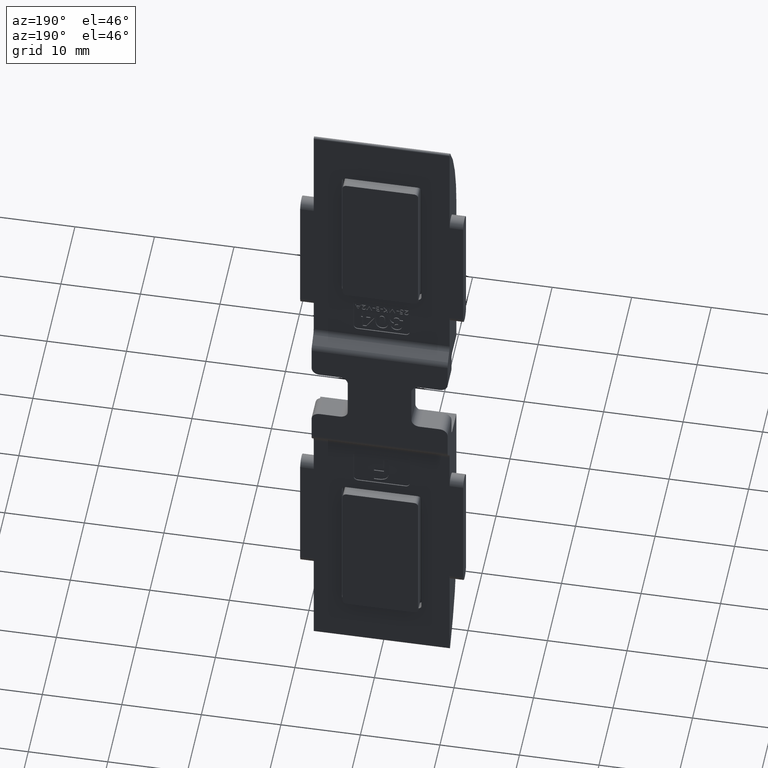
[diagram: clean part render]
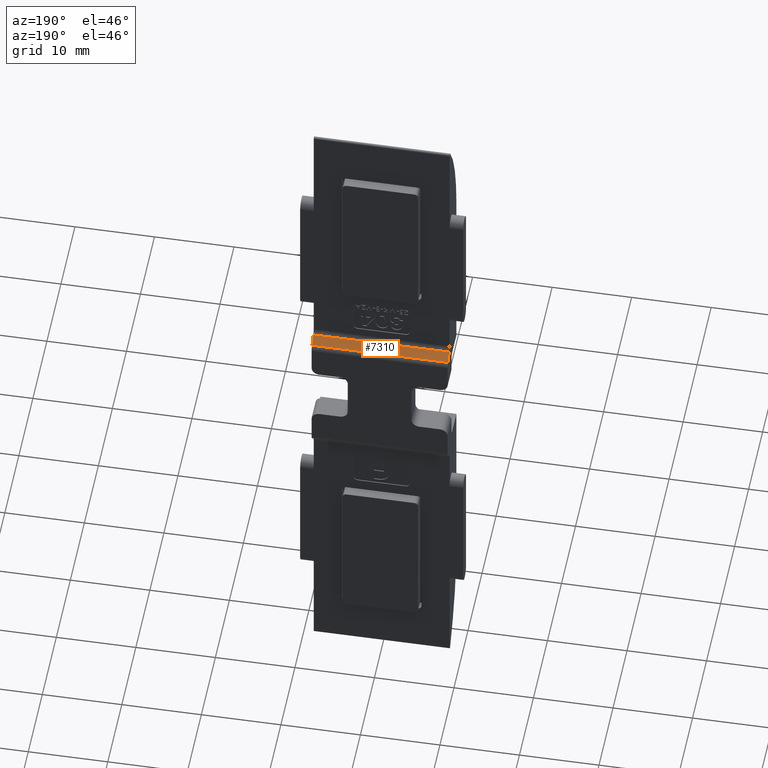
[diagram: same view with one face highlighted and labeled with its STEP entity id]
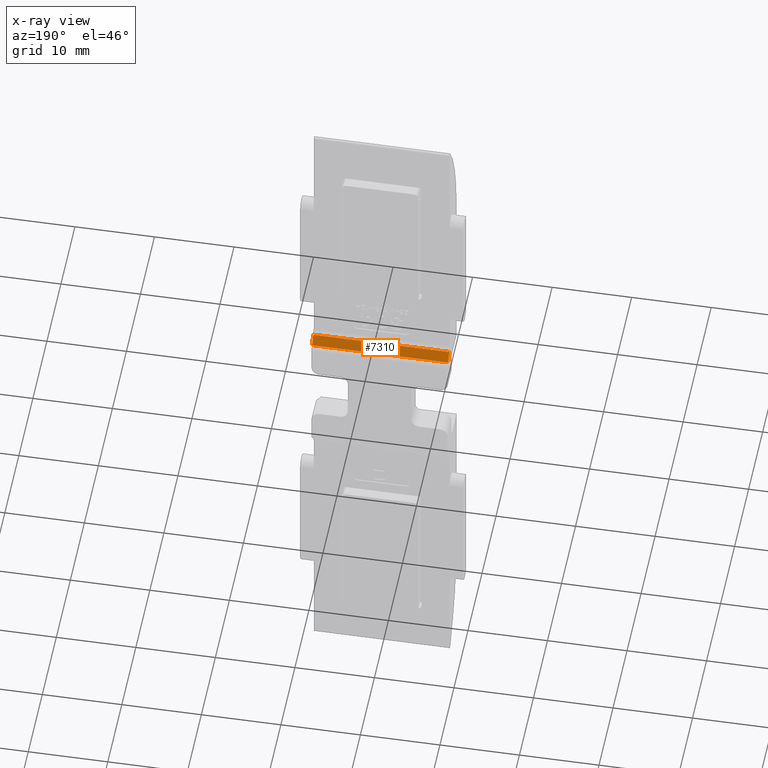
[diagram: x-ray of the same camera — body ghosted, the highlighted face saturated]
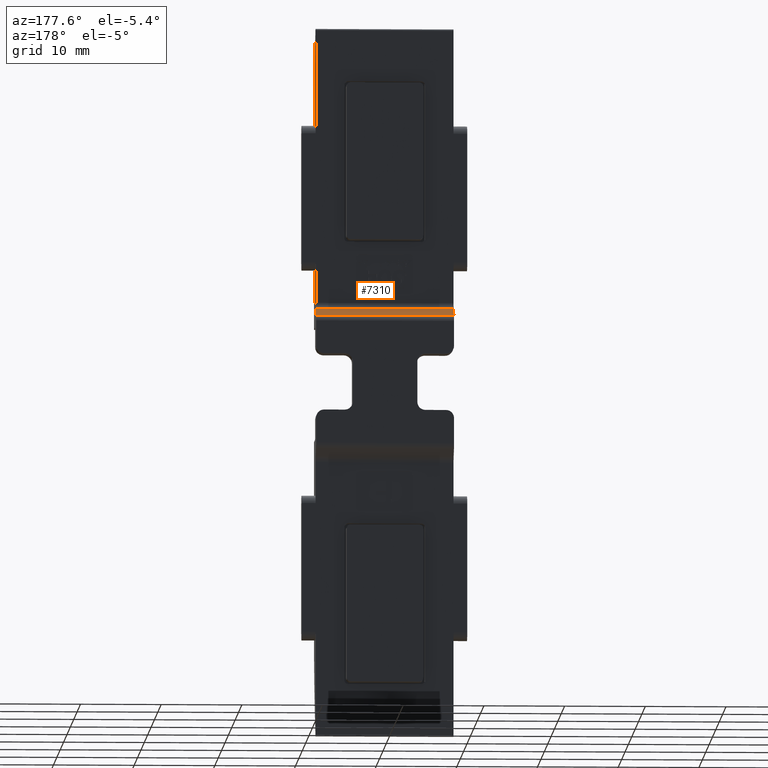
[diagram: same view with one face highlighted and labeled with its STEP entity id]
A machine part, auxiliary view. The second image highlights one B-rep face of the part: STEP entity #7310.
The next image is the same camera in x-ray: the body ghosted, the highlighted face saturated — about 0% of this face is hidden behind the body in this view.
A second angle (auxiliary view) of the same face is appended — the face is thin or edge-on in the first view.
In plain terms, the highlighted planar face has unit normal (0, -0.7071, -0.7071).
Its self-contained STEP definition (entity closure, byte-faithful):
#937 = ORIENTED_EDGE ( 'NONE', *, *, #4612, .F. ) ;
#1337 = CARTESIAN_POINT ( 'NONE',  ( 8.550000000000000700, 6.007106781186546800, 8.292893218813450300 ) ) ;
#1504 = CARTESIAN_POINT ( 'NONE',  ( 8.550000000000000700, 4.799999999999998900, 9.499999999999998200 ) ) ;
#1529 = VECTOR ( 'NONE', #8209, 1000.000000000000000 ) ;
#1591 = DIRECTION ( 'NONE',  ( 0.0000000000000000000, -0.7071067811865474600, 0.7071067811865476800 ) ) ;
#1720 = CARTESIAN_POINT ( 'NONE',  ( -8.550000000000000700, 5.092893218813451000, 9.207106781186546100 ) ) ;
#2174 = CARTESIAN_POINT ( 'NONE',  ( -8.550000000000000700, 5.092893218813451000, 9.207106781186546100 ) ) ;
#2229 = EDGE_CURVE ( 'NONE', #11398, #2518, #10787, .T. ) ;
#2485 = VERTEX_POINT ( 'NONE', #2174 ) ;
#2518 = VERTEX_POINT ( 'NONE', #1337 ) ;
#3818 = VECTOR ( 'NONE', #5531, 1000.000000000000000 ) ;
#4068 = LINE ( 'NONE', #7299, #1529 ) ;
#4472 = DIRECTION ( 'NONE',  ( 0.0000000000000000000, -0.7071067811865476800, -0.7071067811865474600 ) ) ;
#4612 = EDGE_CURVE ( 'NONE', #12003, #2518, #4068, .T. ) ;
#4725 = LINE ( 'NONE', #11186, #3818 ) ;
#4926 = CARTESIAN_POINT ( 'NONE',  ( 8.550000000000000700, 4.799999999999998900, 9.499999999999998200 ) ) ;
#5225 = LINE ( 'NONE', #1720, #6266 ) ;
#5262 = VECTOR ( 'NONE', #10605, 1000.000000000000000 ) ;
#5531 = DIRECTION ( 'NONE',  ( 0.0000000000000000000, 0.7071067811865474600, -0.7071067811865476800 ) ) ;
#5794 = CARTESIAN_POINT ( 'NONE',  ( -8.550000000000000700, 6.007106781186546800, 8.292893218813450300 ) ) ;
#6067 = EDGE_CURVE ( 'NONE', #11398, #2485, #5225, .T. ) ;
#6266 = VECTOR ( 'NONE', #9361, 1000.000000000000000 ) ;
#6286 = AXIS2_PLACEMENT_3D ( 'NONE', #1504, #4472, #1591 ) ;
#7295 = PLANE ( 'NONE',  #6286 ) ;
#7299 = CARTESIAN_POINT ( 'NONE',  ( 8.550000000000000700, 6.007106781186546800, 8.292893218813450300 ) ) ;
#7310 = ADVANCED_FACE ( 'NONE', ( #7363 ), #7295, .F. ) ;
#7363 = FACE_OUTER_BOUND ( 'NONE', #11957, .T. ) ;
#8209 = DIRECTION ( 'NONE',  ( 1.000000000000000000, -0.0000000000000000000, 0.0000000000000000000 ) ) ;
#9111 = ORIENTED_EDGE ( 'NONE', *, *, #2229, .T. ) ;
#9299 = EDGE_CURVE ( 'NONE', #2485, #12003, #4725, .T. ) ;
#9361 = DIRECTION ( 'NONE',  ( -1.000000000000000000, 0.0000000000000000000, -0.0000000000000000000 ) ) ;
#10035 = ORIENTED_EDGE ( 'NONE', *, *, #6067, .F. ) ;
#10605 = DIRECTION ( 'NONE',  ( 0.0000000000000000000, 0.7071067811865474600, -0.7071067811865476800 ) ) ;
#10787 = LINE ( 'NONE', #4926, #5262 ) ;
#10933 = ORIENTED_EDGE ( 'NONE', *, *, #9299, .F. ) ;
#10982 = CARTESIAN_POINT ( 'NONE',  ( 8.550000000000000700, 5.092893218813451000, 9.207106781186546100 ) ) ;
#11186 = CARTESIAN_POINT ( 'NONE',  ( -8.550000000000000700, 4.799999999999998900, 9.499999999999998200 ) ) ;
#11398 = VERTEX_POINT ( 'NONE', #10982 ) ;
#11957 = EDGE_LOOP ( 'NONE', ( #10933, #10035, #9111, #937 ) ) ;
#12003 = VERTEX_POINT ( 'NONE', #5794 ) ;